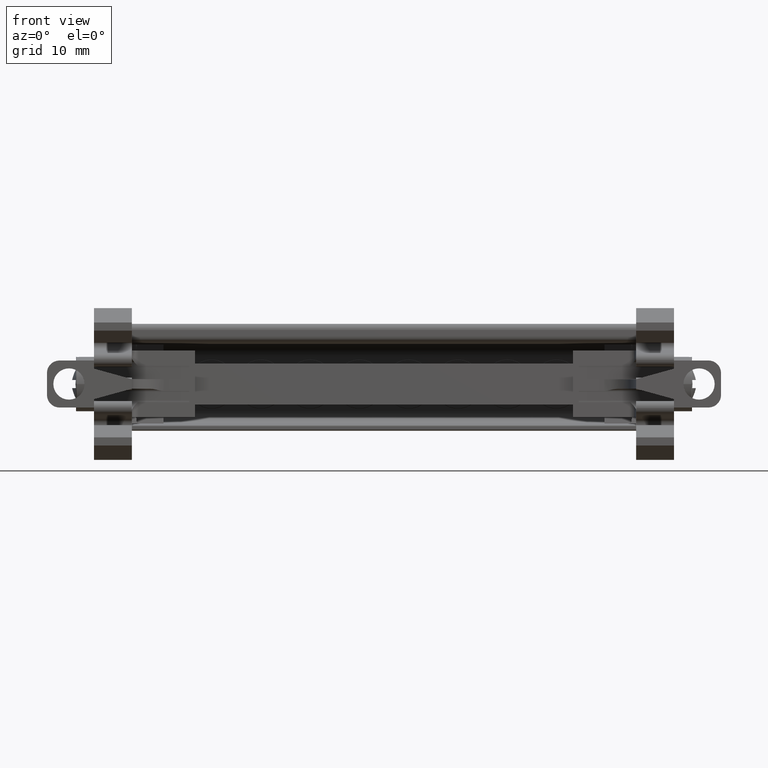
[diagram: clean part render]
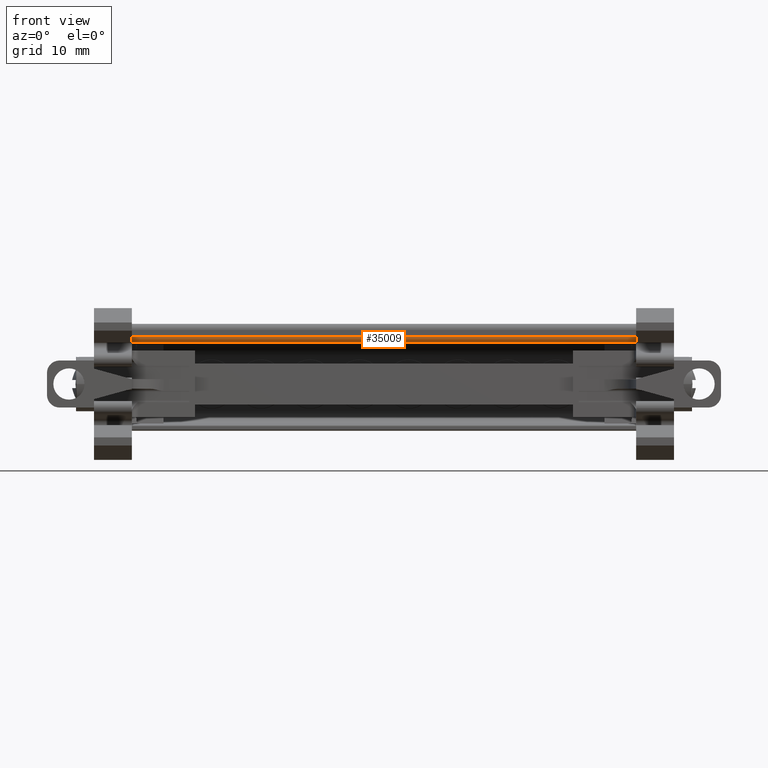
[diagram: same view with one face highlighted and labeled with its STEP entity id]
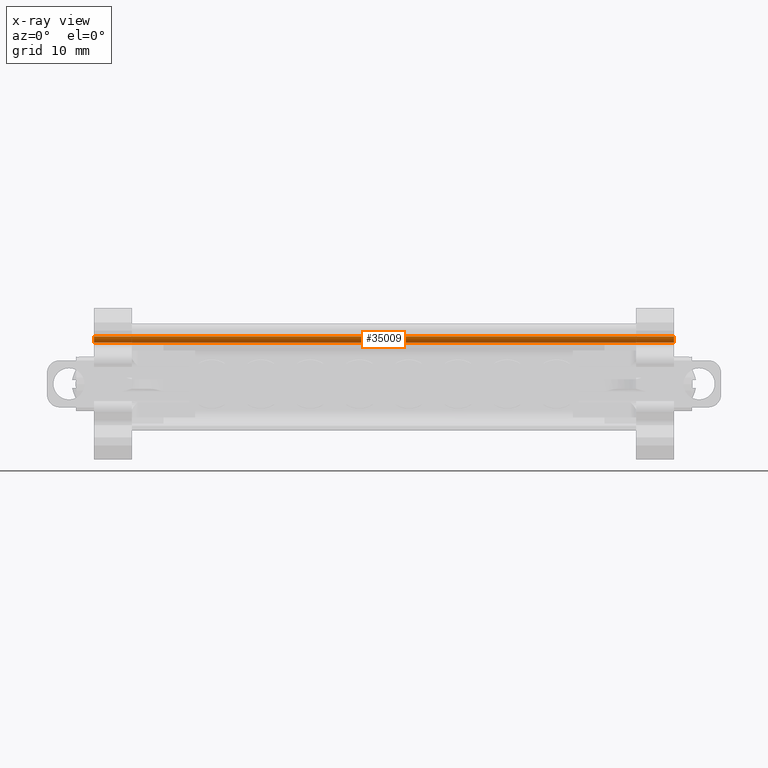
[diagram: x-ray of the same camera — body ghosted, the highlighted face saturated]
A machine part, front view. The second image highlights one B-rep face of the part: STEP entity #35009.
The next image is the same camera in x-ray: the body ghosted, the highlighted face saturated — about 0% of this face is hidden behind the body in this view.
In plain terms, the highlighted cylindrical surface (edge-blend (fillet) strip) has radius 0.9996 mm, axis along (1, 0, -0).
Its self-contained STEP definition (entity closure, byte-faithful):
#9372 = CYLINDRICAL_SURFACE ( 'NONE', #13311, 0.9996212121125974700 ) ;
#9378 = CARTESIAN_POINT ( 'NONE',  ( -84.41619194813540600, -43.98956651627026600, 103.5534993518119200 ) ) ;
#9400 = FACE_OUTER_BOUND ( 'NONE', #20292, .T. ) ;
#9406 = DIRECTION ( 'NONE',  ( -1.388304653768317800E-014, 0.0000000000000000000, -1.000000000000000000 ) ) ;
#9408 = DIRECTION ( 'NONE',  ( 1.000000000000000000, 1.123605221867979900E-014, -1.149507329944757400E-014 ) ) ;
#13311 = AXIS2_PLACEMENT_3D ( 'NONE', #9378, #9408, #9406 ) ;
#18104 = CIRCLE ( 'NONE', #18158, 0.9996212121125974700 ) ;
#18154 = CIRCLE ( 'NONE', #18156, 0.9996212121125974700 ) ;
#18156 = AXIS2_PLACEMENT_3D ( 'NONE', #31304, #31319, #31306 ) ;
#18158 = AXIS2_PLACEMENT_3D ( 'NONE', #31323, #31325, #31302 ) ;
#18263 = VECTOR ( 'NONE', #31493, 1000.000000000000000 ) ;
#18369 = VECTOR ( 'NONE', #31642, 1000.000000000000000 ) ;
#20292 = EDGE_LOOP ( 'NONE', ( #24394, #24365, #24311, #24313 ) ) ;
#21956 = EDGE_CURVE ( 'NONE', #29660, #29730, #18154, .T. ) ;
#21959 = EDGE_CURVE ( 'NONE', #29717, #29647, #18104, .T. ) ;
#21991 = EDGE_CURVE ( 'NONE', #29647, #29660, #31527, .T. ) ;
#22031 = EDGE_CURVE ( 'NONE', #29717, #29730, #31655, .T. ) ;
#24311 = ORIENTED_EDGE ( 'NONE', *, *, #22031, .F. ) ;
#24313 = ORIENTED_EDGE ( 'NONE', *, *, #21959, .T. ) ;
#24365 = ORIENTED_EDGE ( 'NONE', *, *, #21956, .T. ) ;
#24394 = ORIENTED_EDGE ( 'NONE', *, *, #21991, .T. ) ;
#26550 = CARTESIAN_POINT ( 'NONE',  ( -83.26662755420629500, -44.98918772838285200, 103.5534993518117200 ) ) ;
#26557 = CARTESIAN_POINT ( 'NONE',  ( -83.26662755420629500, -44.00701231195056100, 102.5540303868513000 ) ) ;
#26621 = CARTESIAN_POINT ( 'NONE',  ( 8.529243657139094400, -44.00701231194982200, 102.5540303868502400 ) ) ;
#26650 = CARTESIAN_POINT ( 'NONE',  ( 8.529243657139222300, -44.98918772838196400, 103.5534993518106600 ) ) ;
#29647 = VERTEX_POINT ( 'NONE', #26650 ) ;
#29660 = VERTEX_POINT ( 'NONE', #26550 ) ;
#29717 = VERTEX_POINT ( 'NONE', #26621 ) ;
#29730 = VERTEX_POINT ( 'NONE', #26557 ) ;
#31302 = DIRECTION ( 'NONE',  ( -1.214766572047278000E-014, 0.0000000000000000000, -1.000000000000000000 ) ) ;
#31304 = CARTESIAN_POINT ( 'NONE',  ( -83.26662755420629500, -43.98956651627025100, 103.5534993518119100 ) ) ;
#31306 = DIRECTION ( 'NONE',  ( -1.388304653768317800E-014, 0.0000000000000000000, -1.000000000000000000 ) ) ;
#31319 = DIRECTION ( 'NONE',  ( 1.000000000000000000, 1.123605221867979900E-014, -1.149507329944757400E-014 ) ) ;
#31323 = CARTESIAN_POINT ( 'NONE',  ( 8.529243657139209800, -43.98956651626921400, 103.5534993518108600 ) ) ;
#31325 = DIRECTION ( 'NONE',  ( -1.000000000000000000, -1.123605221867979900E-014, 1.149507329944757400E-014 ) ) ;
#31493 = DIRECTION ( 'NONE',  ( -1.000000000000000000, -1.123605221867979900E-014, 1.149507329944757400E-014 ) ) ;
#31523 = CARTESIAN_POINT ( 'NONE',  ( -84.41619194813539200, -44.98918772838285900, 103.5534993518115400 ) ) ;
#31527 = LINE ( 'NONE', #31523, #18263 ) ;
#31615 = CARTESIAN_POINT ( 'NONE',  ( 6.649300475322303500, -44.00701231194999300, 102.5540303868502600 ) ) ;
#31642 = DIRECTION ( 'NONE',  ( -1.000000000000000000, 1.971637866796254000E-016, 1.129550577169792800E-014 ) ) ;
#31655 = LINE ( 'NONE', #31615, #18369 ) ;
#35009 = ADVANCED_FACE ( 'NONE', ( #9400 ), #9372, .T. ) ;